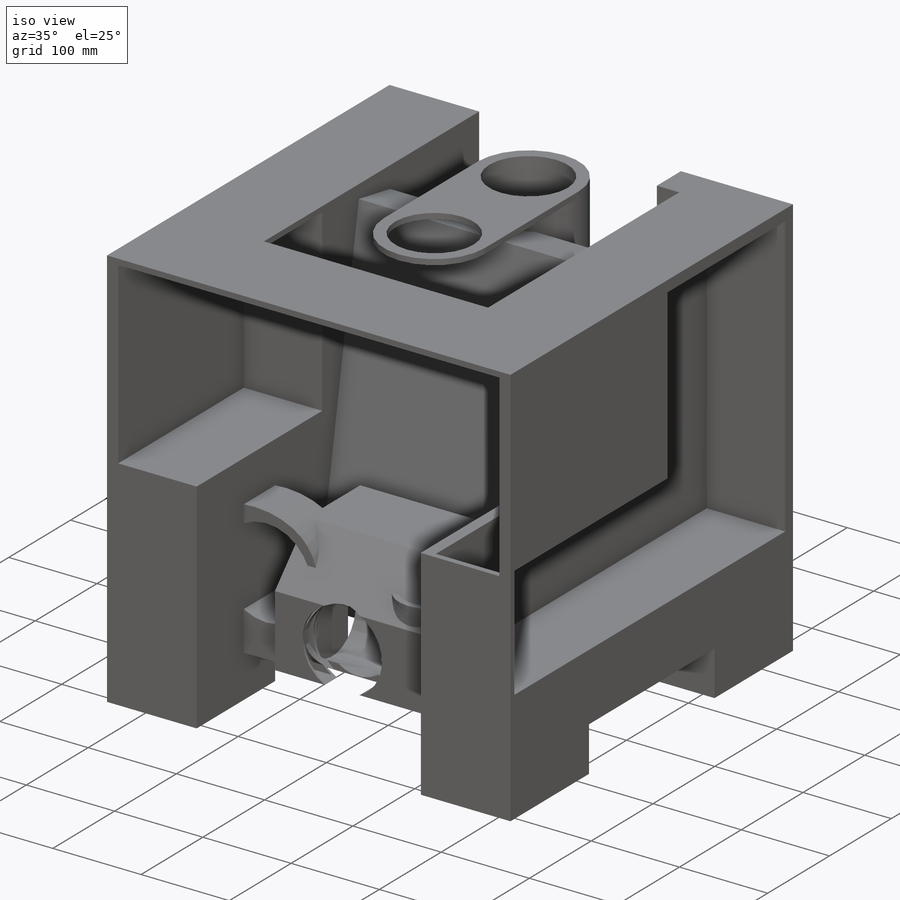
[diagram: iso view]
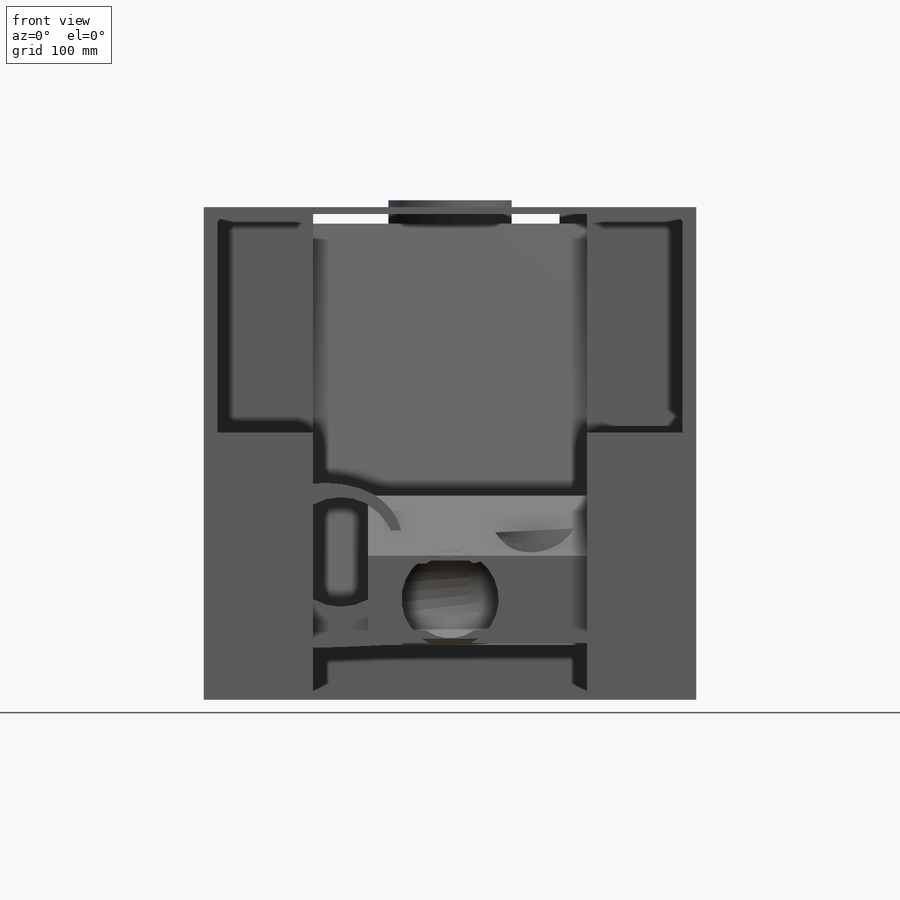
[diagram: front view]
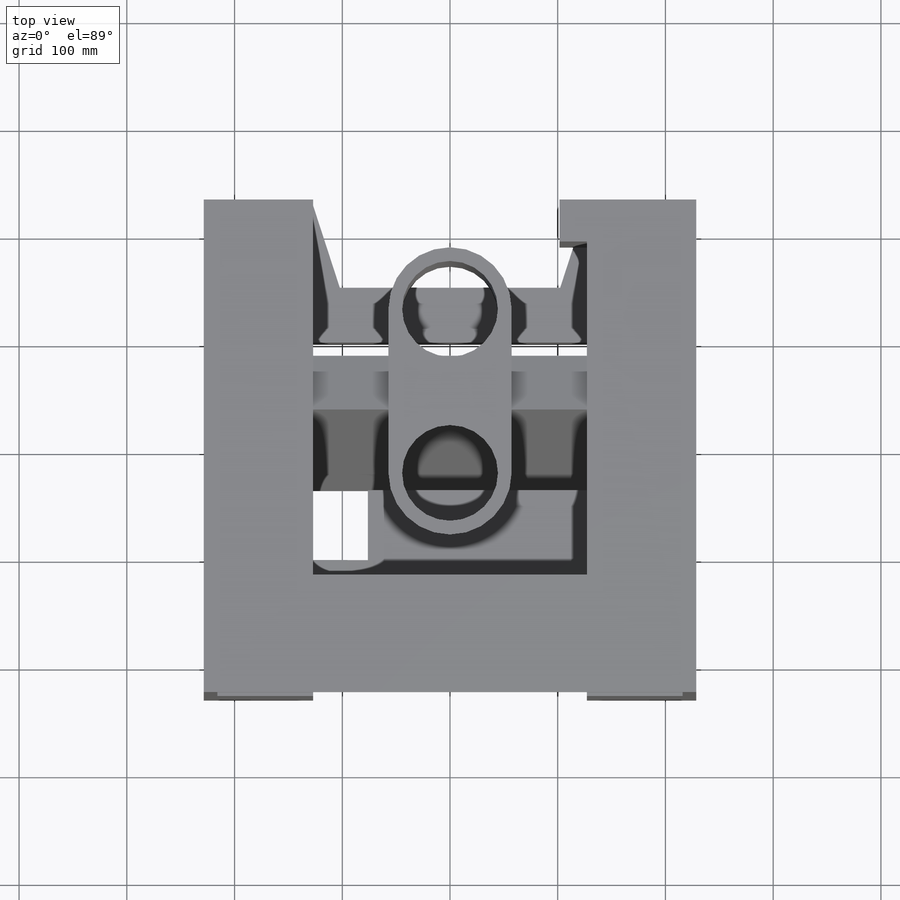
[diagram: top view]
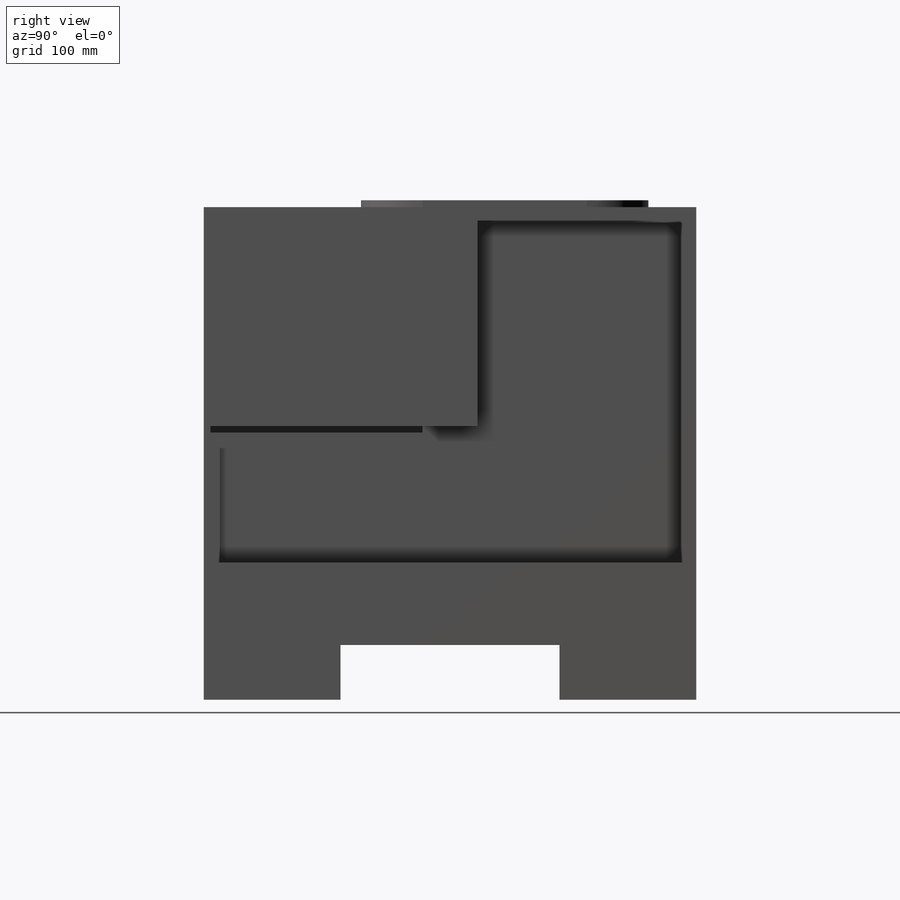
[diagram: right view]
SOLIDWORKS PART (.sldprt)
format: sldprt  version: not decoded by parser v0  size: 603,648 bytes
history: native  units: mm
features: sketch x18, extrude x8, cut_extrude x5, material x1, plane x1, sweep x1 (+16 scaffold rows collapsed)
feature tree (50):
  scaffold x16  (default folders/planes/origin — collapsed)
  material  "Material <not specified>"
  sketch  "Sketch1"  dims[D1=101.6mm D2=457.2mm]
  extrude  "Boss-Extrude1"  Depth=457.2mm
  sketch  "Sketch2"  dims[D1=271.018mm D2=304.8mm D3=76.2mm D4=50.8mm]
  extrude  "Boss-Extrude2"  Depth=127mm
  sketch  "Sketch3"  dims[c1.D1=50.8mm c1.D2=431.8mm c1.D3=~122.981789mm c2.D3=80.0deg]
  extrude  "Boss-Extrude3"  Depth=254mm
  sketch  "Sketch5"  dims[c1.D1=88.9mm c1.D4=~62.216159mm c1.D2=25.4mm c1.D3=127.0mm c2.D4=12.7mm]
  extrude  "Boss-Extrude4"  Depth=6.35mm
  sketch  "Sketch6"
  extrude  "Boss-Extrude5"  Depth=304.8mm
  plane  "Plane1"  Offset=127mm
  sketch  "Sketch7"  dims[D1=50.8mm D2=88.9mm D3=88.9mm]
  sketch  "Sketch8"  dims[D1=101.6mm]
  extrude  "Boss-Extrude6"  Depth=50.8mm
  sketch  "Sketch9"  dims[D1=88.9mm D2=76.2mm]
  sweep  "Sweep1"
  sketch  "Sketch10"  dims[D1=76.2mm]
  cut_extrude  "Cut-Extrude4"  [1 undecoded]
  sketch  "Sketch12"  dims[D1=203.2mm D5=25.4mm D2=304.8mm D3=50.8mm D4=50.8mm]
  sketch  "Sketch13"  dims[D1=254.0mm]
  sketch  "Sketch14"  dims[D1=6.35mm D2=203.2mm D3=203.2mm]
  cut_extrude  "Cut-Extrude6"  Depth=88.9mm
  sketch  "Sketch15"
  extrude  "Boss-Extrude7"  Depth=254mm
  sketch  "Sketch16"  dims[D1=12.7mm D2=12.7mm D3=127.0mm D4=254.0mm D5=127.0mm D6=6.35mm]
  cut_extrude  "Cut-Extrude7"  Depth=88.9mm
  sketch  "Sketch17"  dims[D1=127.0mm D2=50.8mm]
  cut_extrude  "Cut-Extrude9"  [1 undecoded]
  sketch  "Sketch18"
  extrude  "Boss-Extrude8"  Depth=25.4mm
  sketch  "Sketch20"  dims[D1=203.2mm D5=2.54mm D6=2.54mm D7=5.0mm]
  sketch  "Sketch21"
  cut_extrude  "Cut-Extrude10"  Depth=25.4mm
decode coverage: 25 of 32 modeling features carry decoded parameters
note: ~ marks probable driven/reference dimensions
note: 2 parameter values undecoded
note: suppression state not decoded; provenance and decode notes live in map.json
